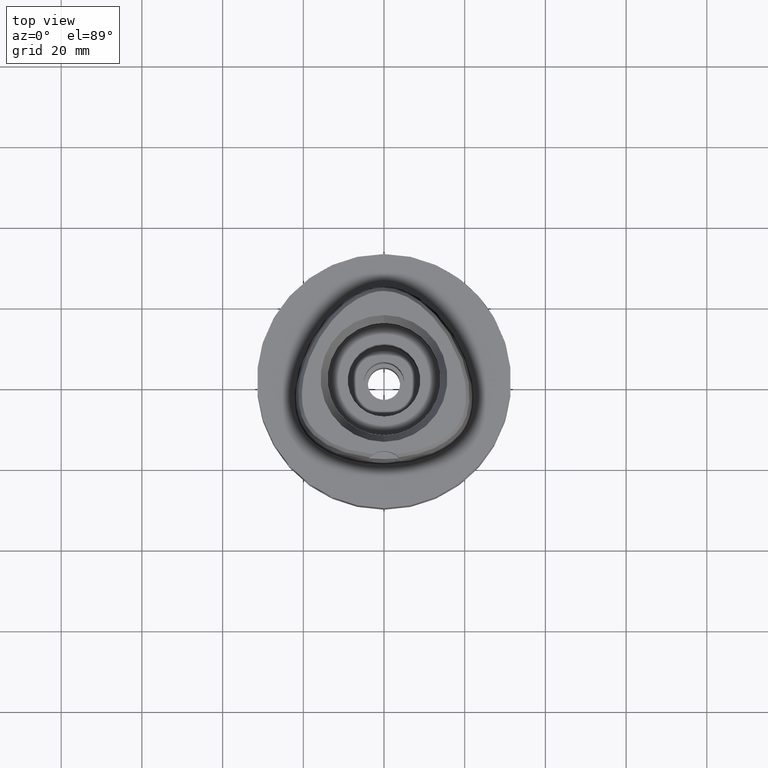
[diagram: clean part render]
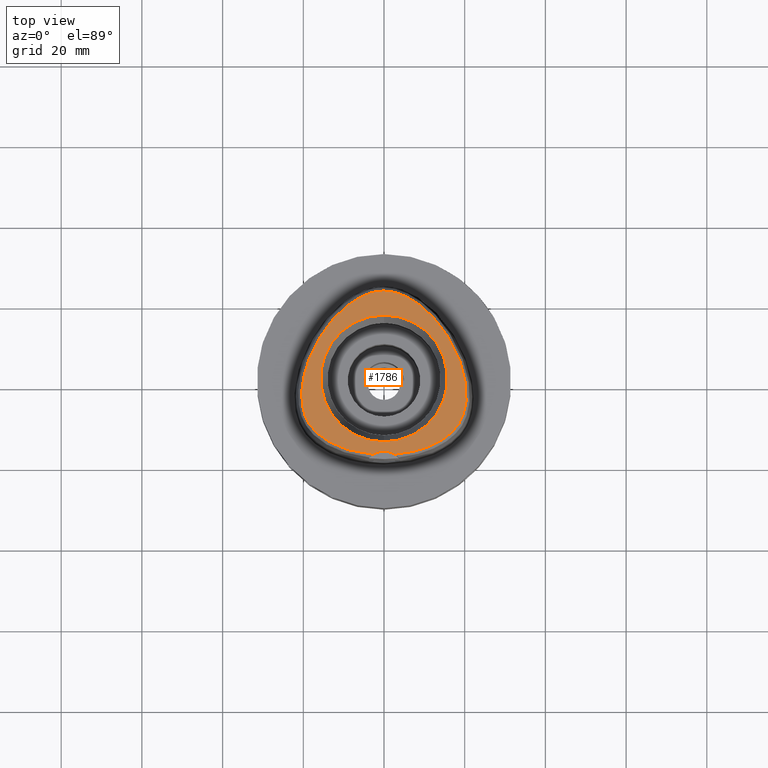
[diagram: same view with one face highlighted and labeled with its STEP entity id]
A machine part, top view. The second image highlights one B-rep face of the part: STEP entity #1786.
In plain terms, the highlighted planar face has unit normal (0, 0, 1).
Its self-contained STEP definition (entity closure, byte-faithful):
#17=CARTESIAN_POINT('',(0.E0,-2.3E1,3.8E1));
#18=DIRECTION('',(0.E0,0.E0,1.E0));
#19=DIRECTION('',(5.364574965210E-1,8.439273395420E-1,0.E0));
#20=AXIS2_PLACEMENT_3D('',#17,#18,#19);
#26=CARTESIAN_POINT('',(0.E0,-2.3E1,3.8E1));
#27=DIRECTION('',(0.E0,0.E0,1.E0));
#28=DIRECTION('',(0.E0,1.E0,0.E0));
#29=AXIS2_PLACEMENT_3D('',#26,#27,#28);
#34=CARTESIAN_POINT('',(-2.682279906005E0,-1.878035848610E1,3.8E1));
#35=CARTESIAN_POINT('',(-3.586228584062E0,-1.870801032784E1,3.8E1));
#36=CARTESIAN_POINT('',(-5.308205291719E0,-1.849730836982E1,3.8E1));
#37=CARTESIAN_POINT('',(-7.692709063749E0,-1.800633864786E1,3.8E1));
#38=CARTESIAN_POINT('',(-9.712981903672E0,-1.741853963226E1,3.8E1));
#39=CARTESIAN_POINT('',(-1.147525672069E1,-1.675738778527E1,3.8E1));
#40=CARTESIAN_POINT('',(-1.306392596099E1,-1.601239927795E1,3.8E1));
#41=CARTESIAN_POINT('',(-1.449905288696E1,-1.518252759700E1,3.8E1));
#42=CARTESIAN_POINT('',(-1.576050267704E1,-1.428524329159E1,3.8E1));
#43=CARTESIAN_POINT('',(-1.681104160528E1,-1.336911615889E1,3.8E1));
#44=CARTESIAN_POINT('',(-1.768125124672E1,-1.244006173382E1,3.8E1));
#45=CARTESIAN_POINT('',(-1.839385644939E1,-1.150034381849E1,3.8E1));
#46=CARTESIAN_POINT('',(-1.897399263884E1,-1.053874622235E1,3.8E1));
#47=CARTESIAN_POINT('',(-1.946010380121E1,-9.494598084362E0,3.8E1));
#48=CARTESIAN_POINT('',(-1.986244720966E1,-8.325388119061E0,3.8E1));
#49=CARTESIAN_POINT('',(-2.016823293588E1,-7.015151607123E0,3.8E1));
#50=CARTESIAN_POINT('',(-2.036164792737E1,-5.534767052075E0,3.8E1));
#51=CARTESIAN_POINT('',(-2.041577404863E1,-3.903596769674E0,3.8E1));
#52=CARTESIAN_POINT('',(-2.032076525533E1,-2.195753978114E0,3.8E1));
#53=CARTESIAN_POINT('',(-2.007105693777E1,-3.804572632914E-1,3.8E1));
#54=CARTESIAN_POINT('',(-1.964535756017E1,1.582714370326E0,3.8E1));
#55=CARTESIAN_POINT('',(-1.897962183322E1,3.805018530937E0,3.8E1));
#56=CARTESIAN_POINT('',(-1.803159290117E1,6.223282390160E0,3.8E1));
#57=CARTESIAN_POINT('',(-1.684793801476E1,8.639177031310E0,3.8E1));
#58=CARTESIAN_POINT('',(-1.546279333050E1,1.097129757902E1,3.8E1));
#59=CARTESIAN_POINT('',(-1.392323681969E1,1.314528534779E1,3.8E1));
#60=CARTESIAN_POINT('',(-1.228370738747E1,1.509661597866E1,3.8E1));
#61=CARTESIAN_POINT('',(-1.071326479375E1,1.668049699608E1,3.8E1));
#62=CARTESIAN_POINT('',(-9.247586420916E0,1.794799681307E1,3.8E1));
#63=CARTESIAN_POINT('',(-7.805395981351E0,1.901144500772E1,3.8E1));
#64=CARTESIAN_POINT('',(-6.370413206387E0,1.989480475333E1,3.8E1));
#65=CARTESIAN_POINT('',(-4.952404261646E0,2.059889163185E1,3.8E1));
#66=CARTESIAN_POINT('',(-3.600044316983E0,2.111310554259E1,3.8E1));
#67=CARTESIAN_POINT('',(-2.334074181748E0,2.145347675428E1,3.8E1));
#68=CARTESIAN_POINT('',(-1.142370311409E0,2.164594999977E1,3.8E1));
#69=CARTESIAN_POINT('',(-3.750273285144E-1,2.168728795389E1,3.8E1));
#70=CARTESIAN_POINT('',(-3.470663397193E-11,2.168728795390E1,3.8E1));
#75=CARTESIAN_POINT('',(-3.470663397193E-11,2.168728795390E1,3.8E1));
#76=CARTESIAN_POINT('',(3.745690702022E-1,2.168728795390E1,3.8E1));
#77=CARTESIAN_POINT('',(1.141121670073E0,2.164602282739E1,3.8E1));
#78=CARTESIAN_POINT('',(2.331421374552E0,2.145407358207E1,3.8E1));
#79=CARTESIAN_POINT('',(3.597560604302E0,2.111375472189E1,3.8E1));
#80=CARTESIAN_POINT('',(4.944828382977E0,2.060227488033E1,3.8E1));
#81=CARTESIAN_POINT('',(6.372008198039E0,1.989432999611E1,3.8E1));
#82=CARTESIAN_POINT('',(7.812054278356E0,1.900692024807E1,3.8E1));
#83=CARTESIAN_POINT('',(9.250259473706E0,1.794565616581E1,3.8E1));
#84=CARTESIAN_POINT('',(1.070899074085E1,1.668389592305E1,3.8E1));
#85=CARTESIAN_POINT('',(1.226636458508E1,1.511517924803E1,3.8E1));
#86=CARTESIAN_POINT('',(1.390632606248E1,1.316720957965E1,3.8E1));
#87=CARTESIAN_POINT('',(1.544596556621E1,1.099712226089E1,3.8E1));
#88=CARTESIAN_POINT('',(1.683356521605E1,8.665673462707E0,3.8E1));
#89=CARTESIAN_POINT('',(1.801798316892E1,6.253854251018E0,3.8E1));
#90=CARTESIAN_POINT('',(1.897072838592E1,3.832103251755E0,3.8E1));
#91=CARTESIAN_POINT('',(1.964461333420E1,1.587289585537E0,3.8E1));
#92=CARTESIAN_POINT('',(2.007064400534E1,-3.787227027968E-1,3.8E1));
#93=CARTESIAN_POINT('',(2.032069917873E1,-2.193517361373E0,3.8E1));
#94=CARTESIAN_POINT('',(2.041581968121E1,-3.907814856699E0,3.8E1));
#95=CARTESIAN_POINT('',(2.036167999029E1,-5.532004691639E0,3.8E1));
#96=CARTESIAN_POINT('',(2.016886585450E1,-7.011856150934E0,3.8E1));
#97=CARTESIAN_POINT('',(1.986310556584E1,-8.323322159548E0,3.8E1));
#98=CARTESIAN_POINT('',(1.945991635336E1,-9.495368793193E0,3.8E1));
#99=CARTESIAN_POINT('',(1.897266566893E1,-1.054126145409E1,3.8E1));
#100=CARTESIAN_POINT('',(1.839307052164E1,-1.150133077041E1,3.8E1));
#101=CARTESIAN_POINT('',(1.768136960646E1,-1.243999736080E1,3.8E1));
#102=CARTESIAN_POINT('',(1.680959594209E1,-1.337046249425E1,3.8E1));
#103=CARTESIAN_POINT('',(1.576120041331E1,-1.428469220963E1,3.8E1));
#104=CARTESIAN_POINT('',(1.449640606672E1,-1.518440691187E1,3.8E1));
#105=CARTESIAN_POINT('',(1.305910619962E1,-1.601484976964E1,3.8E1));
#106=CARTESIAN_POINT('',(1.147345346428E1,-1.675805980928E1,3.8E1));
#107=CARTESIAN_POINT('',(9.712054165195E0,-1.741883825210E1,3.8E1));
#108=CARTESIAN_POINT('',(7.692172013779E0,-1.800646947015E1,3.8E1));
#109=CARTESIAN_POINT('',(5.307430346737E0,-1.849743176947E1,3.8E1));
#110=CARTESIAN_POINT('',(3.585925974635E0,-1.870802915695E1,3.8E1));
#111=CARTESIAN_POINT('',(2.682287482607E0,-1.878036330229E1,3.8E1));
#116=CARTESIAN_POINT('',(0.E0,0.E0,3.8E1));
#117=DIRECTION('',(0.E0,0.E0,1.E0));
#118=DIRECTION('',(0.E0,1.E0,0.E0));
#119=AXIS2_PLACEMENT_3D('',#116,#117,#118);
#124=CARTESIAN_POINT('',(0.E0,0.E0,3.8E1));
#125=DIRECTION('',(0.E0,0.E0,1.E0));
#126=DIRECTION('',(0.E0,-1.E0,0.E0));
#127=AXIS2_PLACEMENT_3D('',#124,#125,#126);
#1582=CARTESIAN_POINT('',(0.E0,-1.8E1,3.8E1));
#1583=CARTESIAN_POINT('',(-2.682279906007E0,-1.878035848610E1,3.8E1));
#1584=VERTEX_POINT('',#1582);
#1585=VERTEX_POINT('',#1583);
#1586=CARTESIAN_POINT('',(2.682287482605E0,-1.878036330229E1,3.8E1));
#1587=VERTEX_POINT('',#1586);
#1588=VERTEX_POINT('',#70);
#1589=CARTESIAN_POINT('',(0.E0,1.571487483156E1,3.8E1));
#1590=CARTESIAN_POINT('',(0.E0,-1.571487483156E1,3.8E1));
#1591=VERTEX_POINT('',#1589);
#1592=VERTEX_POINT('',#1590);
#1765=CARTESIAN_POINT('',(0.E0,0.E0,3.8E1));
#1766=DIRECTION('',(0.E0,0.E0,1.E0));
#1767=DIRECTION('',(0.E0,1.E0,0.E0));
#1768=AXIS2_PLACEMENT_3D('',#1765,#1766,#1767);
#1769=PLANE('',#1768);
#1771=ORIENTED_EDGE('',*,*,#1770,.T.);
#1773=ORIENTED_EDGE('',*,*,#1772,.T.);
#1775=ORIENTED_EDGE('',*,*,#1774,.T.);
#1777=ORIENTED_EDGE('',*,*,#1776,.T.);
#1778=EDGE_LOOP('',(#1771,#1773,#1775,#1777));
#1779=FACE_OUTER_BOUND('',#1778,.F.);
#1781=ORIENTED_EDGE('',*,*,#1780,.T.);
#1783=ORIENTED_EDGE('',*,*,#1782,.T.);
#1784=EDGE_LOOP('',(#1781,#1783));
#1785=FACE_BOUND('',#1784,.F.);
#21=CIRCLE('',#20,5.E0);
#30=CIRCLE('',#29,5.E0);
#71=B_SPLINE_CURVE_WITH_KNOTS('',3,(#34,#35,#36,#37,#38,#39,#40,#41,#42,#43,#44,
#45,#46,#47,#48,#49,#50,#51,#52,#53,#54,#55,#56,#57,#58,#59,#60,#61,#62,#63,#64,
#65,#66,#67,#68,#69,#70),.UNSPECIFIED.,.F.,.F.,(4,1,1,1,1,1,1,1,1,1,1,1,1,1,1,1,
1,1,1,1,1,1,1,1,1,1,1,1,1,1,1,1,1,1,4),(0.E0,2.941176470588E-2,
5.882352941176E-2,8.823529411765E-2,1.176470588235E-1,1.470588235294E-1,
1.764705882353E-1,2.058823529412E-1,2.352941176471E-1,2.647058823529E-1,
2.941176470588E-1,3.235294117647E-1,3.529411764706E-1,3.823529411765E-1,
4.117647058824E-1,4.411764705882E-1,4.705882352941E-1,5.E-1,5.294117647059E-1,
5.588235294118E-1,5.882352941176E-1,6.176470588235E-1,6.470588235294E-1,
6.764705882353E-1,7.058823529412E-1,7.352941176471E-1,7.647058823529E-1,
7.941176470588E-1,8.235294117647E-1,8.529411764706E-1,8.823529411765E-1,
9.117647058824E-1,9.411764705882E-1,9.705882352941E-1,1.E0),.UNSPECIFIED.);
#112=B_SPLINE_CURVE_WITH_KNOTS('',3,(#75,#76,#77,#78,#79,#80,#81,#82,#83,#84,
#85,#86,#87,#88,#89,#90,#91,#92,#93,#94,#95,#96,#97,#98,#99,#100,#101,#102,#103,
#104,#105,#106,#107,#108,#109,#110,#111),.UNSPECIFIED.,.F.,.F.,(4,1,1,1,1,1,1,1,
1,1,1,1,1,1,1,1,1,1,1,1,1,1,1,1,1,1,1,1,1,1,1,1,1,1,4),(0.E0,2.941176470588E-2,
5.882352941176E-2,8.823529411765E-2,1.176470588235E-1,1.470588235294E-1,
1.764705882353E-1,2.058823529412E-1,2.352941176471E-1,2.647058823529E-1,
2.941176470588E-1,3.235294117647E-1,3.529411764706E-1,3.823529411765E-1,
4.117647058824E-1,4.411764705882E-1,4.705882352941E-1,5.E-1,5.294117647059E-1,
5.588235294118E-1,5.882352941176E-1,6.176470588235E-1,6.470588235294E-1,
6.764705882353E-1,7.058823529412E-1,7.352941176471E-1,7.647058823529E-1,
7.941176470588E-1,8.235294117647E-1,8.529411764706E-1,8.823529411765E-1,
9.117647058824E-1,9.411764705882E-1,9.705882352941E-1,1.E0),.UNSPECIFIED.);
#120=CIRCLE('',#119,1.571487483156E1);
#128=CIRCLE('',#127,1.571487483156E1);
#1770=EDGE_CURVE('',#1587,#1584,#21,.T.);
#1772=EDGE_CURVE('',#1584,#1585,#30,.T.);
#1774=EDGE_CURVE('',#1585,#1588,#71,.T.);
#1776=EDGE_CURVE('',#1588,#1587,#112,.T.);
#1780=EDGE_CURVE('',#1591,#1592,#120,.T.);
#1782=EDGE_CURVE('',#1592,#1591,#128,.T.);
#1786=ADVANCED_FACE('',(#1779,#1785),#1769,.T.);